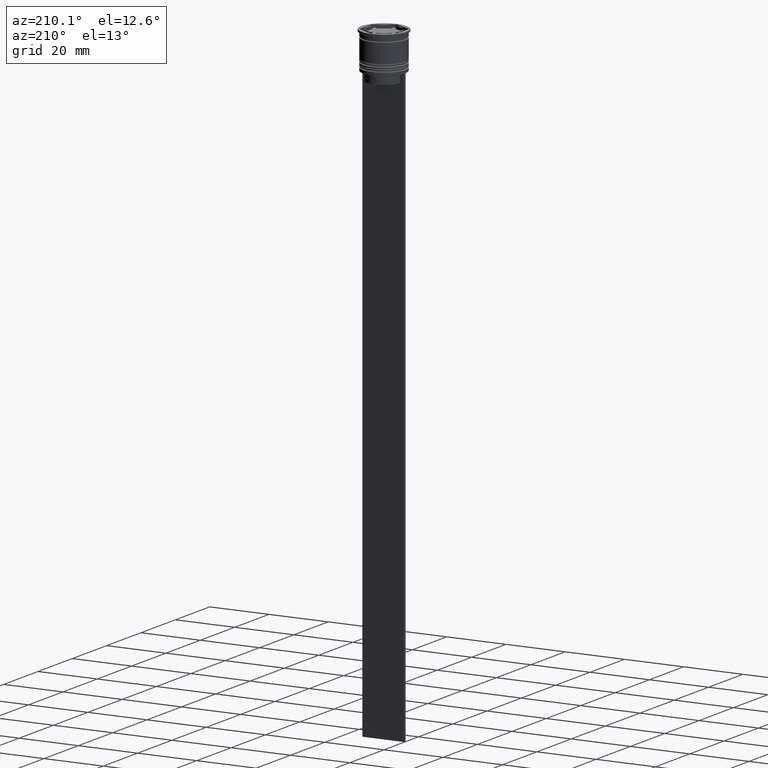
[diagram: clean part render]
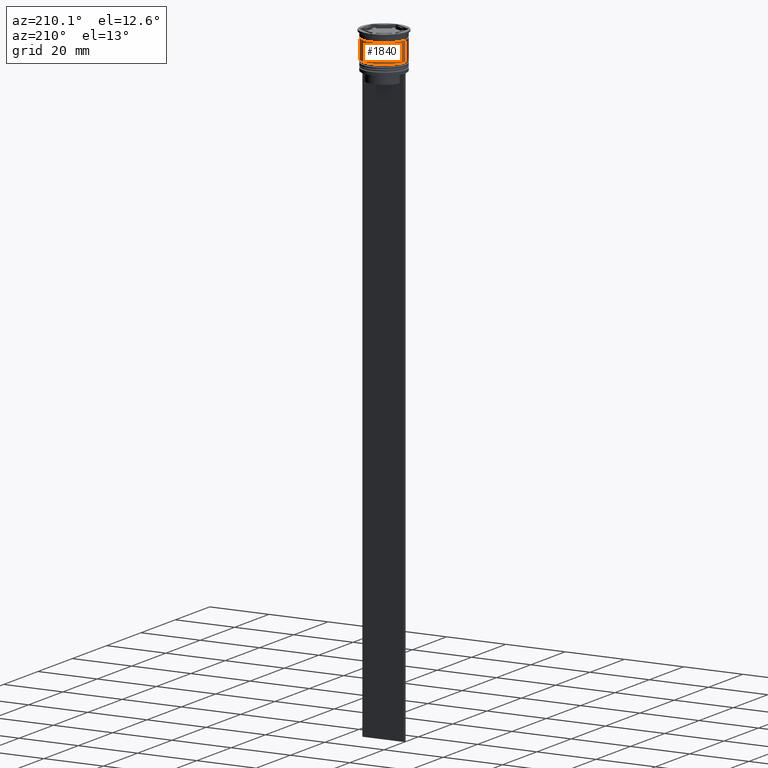
[diagram: same view with one face highlighted and labeled with its STEP entity id]
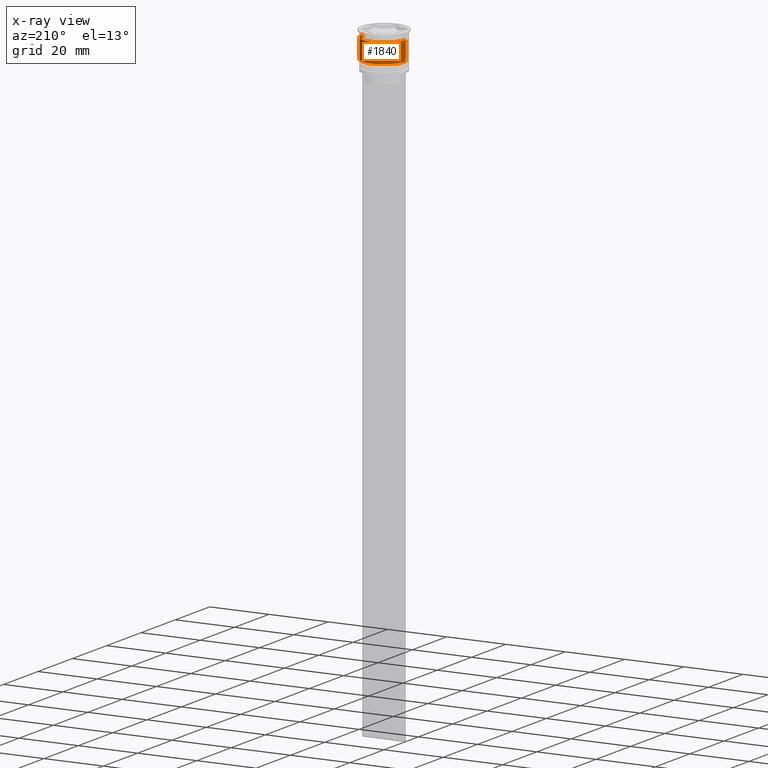
[diagram: x-ray of the same camera — body ghosted, the highlighted face saturated]
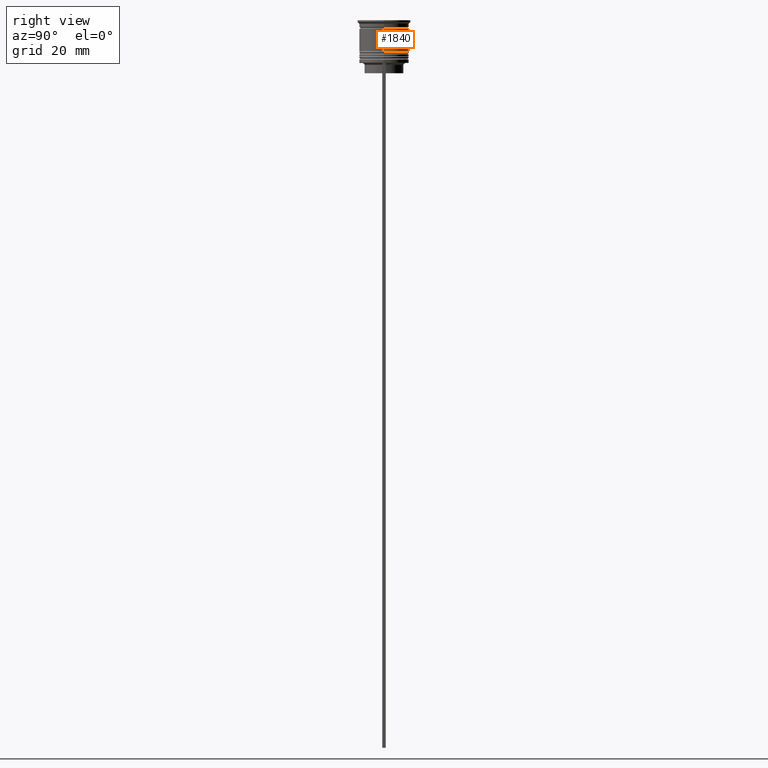
[diagram: same view with one face highlighted and labeled with its STEP entity id]
A machine part, auxiliary view. The second image highlights one B-rep face of the part: STEP entity #1840.
The next image is the same camera in x-ray: the body ghosted, the highlighted face saturated — about 0% of this face is hidden behind the body in this view.
A second angle (right view) of the same face is appended — the face is thin or edge-on in the first view.
In plain terms, the highlighted cylindrical surface (edge-blend (fillet) strip) has radius 7.25 mm, axis along (-0, -0, 1).
Its self-contained STEP definition (entity closure, byte-faithful):
#131 = ORIENTED_EDGE ( 'NONE', *, *, #1733, .T. ) ;
#285 = LINE ( 'NONE', #1891, #1503 ) ;
#299 = CARTESIAN_POINT ( 'NONE',  ( 0.000000000000000000, 0.000000000000000000, -2.500000000000000444 ) ) ;
#330 = DIRECTION ( 'NONE',  ( -0.000000000000000000, -0.000000000000000000, 1.000000000000000000 ) ) ;
#336 = VERTEX_POINT ( 'NONE', #427 ) ;
#342 = CARTESIAN_POINT ( 'NONE',  ( 0.000000000000000000, 0.000000000000000000, -9.000000000000001776 ) ) ;
#427 = CARTESIAN_POINT ( 'NONE',  ( 7.250000000000000888, 0.000000000000000000, -9.000000000000001776 ) ) ;
#429 = EDGE_CURVE ( 'NONE', #336, #1378, #1441, .T. ) ;
#439 = CIRCLE ( 'NONE', #1370, 7.249999999999997335 ) ;
#459 = DIRECTION ( 'NONE',  ( -0.000000000000000000, -0.000000000000000000, 1.000000000000000000 ) ) ;
#567 = EDGE_LOOP ( 'NONE', ( #2278, #131, #736, #2193 ) ) ;
#694 = CARTESIAN_POINT ( 'NONE',  ( -7.249999999999997335, 8.878689293818308102E-16, -2.500000000000000444 ) ) ;
#702 = CARTESIAN_POINT ( 'NONE',  ( -7.250000000000000888, 8.878689293818312046E-16, -9.000000000000001776 ) ) ;
#736 = ORIENTED_EDGE ( 'NONE', *, *, #1265, .F. ) ;
#812 = CARTESIAN_POINT ( 'NONE',  ( 7.249999999999999112, 0.000000000000000000, 0.000000000000000000 ) ) ;
#832 = VERTEX_POINT ( 'NONE', #1184 ) ;
#908 = VERTEX_POINT ( 'NONE', #694 ) ;
#1043 = DIRECTION ( 'NONE',  ( 1.000000000000000000, 0.000000000000000000, 0.000000000000000000 ) ) ;
#1184 = CARTESIAN_POINT ( 'NONE',  ( 7.249999999999997335, 0.000000000000000000, -2.500000000000000444 ) ) ;
#1231 = CYLINDRICAL_SURFACE ( 'NONE', #1888, 7.249999999999999112 ) ;
#1265 = EDGE_CURVE ( 'NONE', #832, #908, #439, .T. ) ;
#1370 = AXIS2_PLACEMENT_3D ( 'NONE', #299, #2276, #1540 ) ;
#1378 = VERTEX_POINT ( 'NONE', #702 ) ;
#1441 = CIRCLE ( 'NONE', #1872, 7.250000000000000888 ) ;
#1503 = VECTOR ( 'NONE', #459, 1000.000000000000000 ) ;
#1540 = DIRECTION ( 'NONE',  ( 1.000000000000000000, 0.000000000000000000, 0.000000000000000000 ) ) ;
#1583 = DIRECTION ( 'NONE',  ( -0.000000000000000000, -0.000000000000000000, 1.000000000000000000 ) ) ;
#1616 = VECTOR ( 'NONE', #2244, 1000.000000000000000 ) ;
#1714 = EDGE_CURVE ( 'NONE', #336, #832, #2273, .T. ) ;
#1733 = EDGE_CURVE ( 'NONE', #1378, #908, #285, .T. ) ;
#1765 = FACE_OUTER_BOUND ( 'NONE', #567, .T. ) ;
#1785 = DIRECTION ( 'NONE',  ( 1.000000000000000000, 0.000000000000000000, 0.000000000000000000 ) ) ;
#1840 = ADVANCED_FACE ( 'NONE', ( #1765 ), #1231, .T. ) ;
#1872 = AXIS2_PLACEMENT_3D ( 'NONE', #342, #330, #1785 ) ;
#1888 = AXIS2_PLACEMENT_3D ( 'NONE', #1965, #1583, #1043 ) ;
#1891 = CARTESIAN_POINT ( 'NONE',  ( -7.249999999999999112, 8.878689293818310074E-16, 0.000000000000000000 ) ) ;
#1965 = CARTESIAN_POINT ( 'NONE',  ( 0.000000000000000000, 0.000000000000000000, 0.000000000000000000 ) ) ;
#2193 = ORIENTED_EDGE ( 'NONE', *, *, #1714, .F. ) ;
#2244 = DIRECTION ( 'NONE',  ( -0.000000000000000000, -0.000000000000000000, 1.000000000000000000 ) ) ;
#2273 = LINE ( 'NONE', #812, #1616 ) ;
#2276 = DIRECTION ( 'NONE',  ( -0.000000000000000000, -0.000000000000000000, 1.000000000000000000 ) ) ;
#2278 = ORIENTED_EDGE ( 'NONE', *, *, #429, .T. ) ;